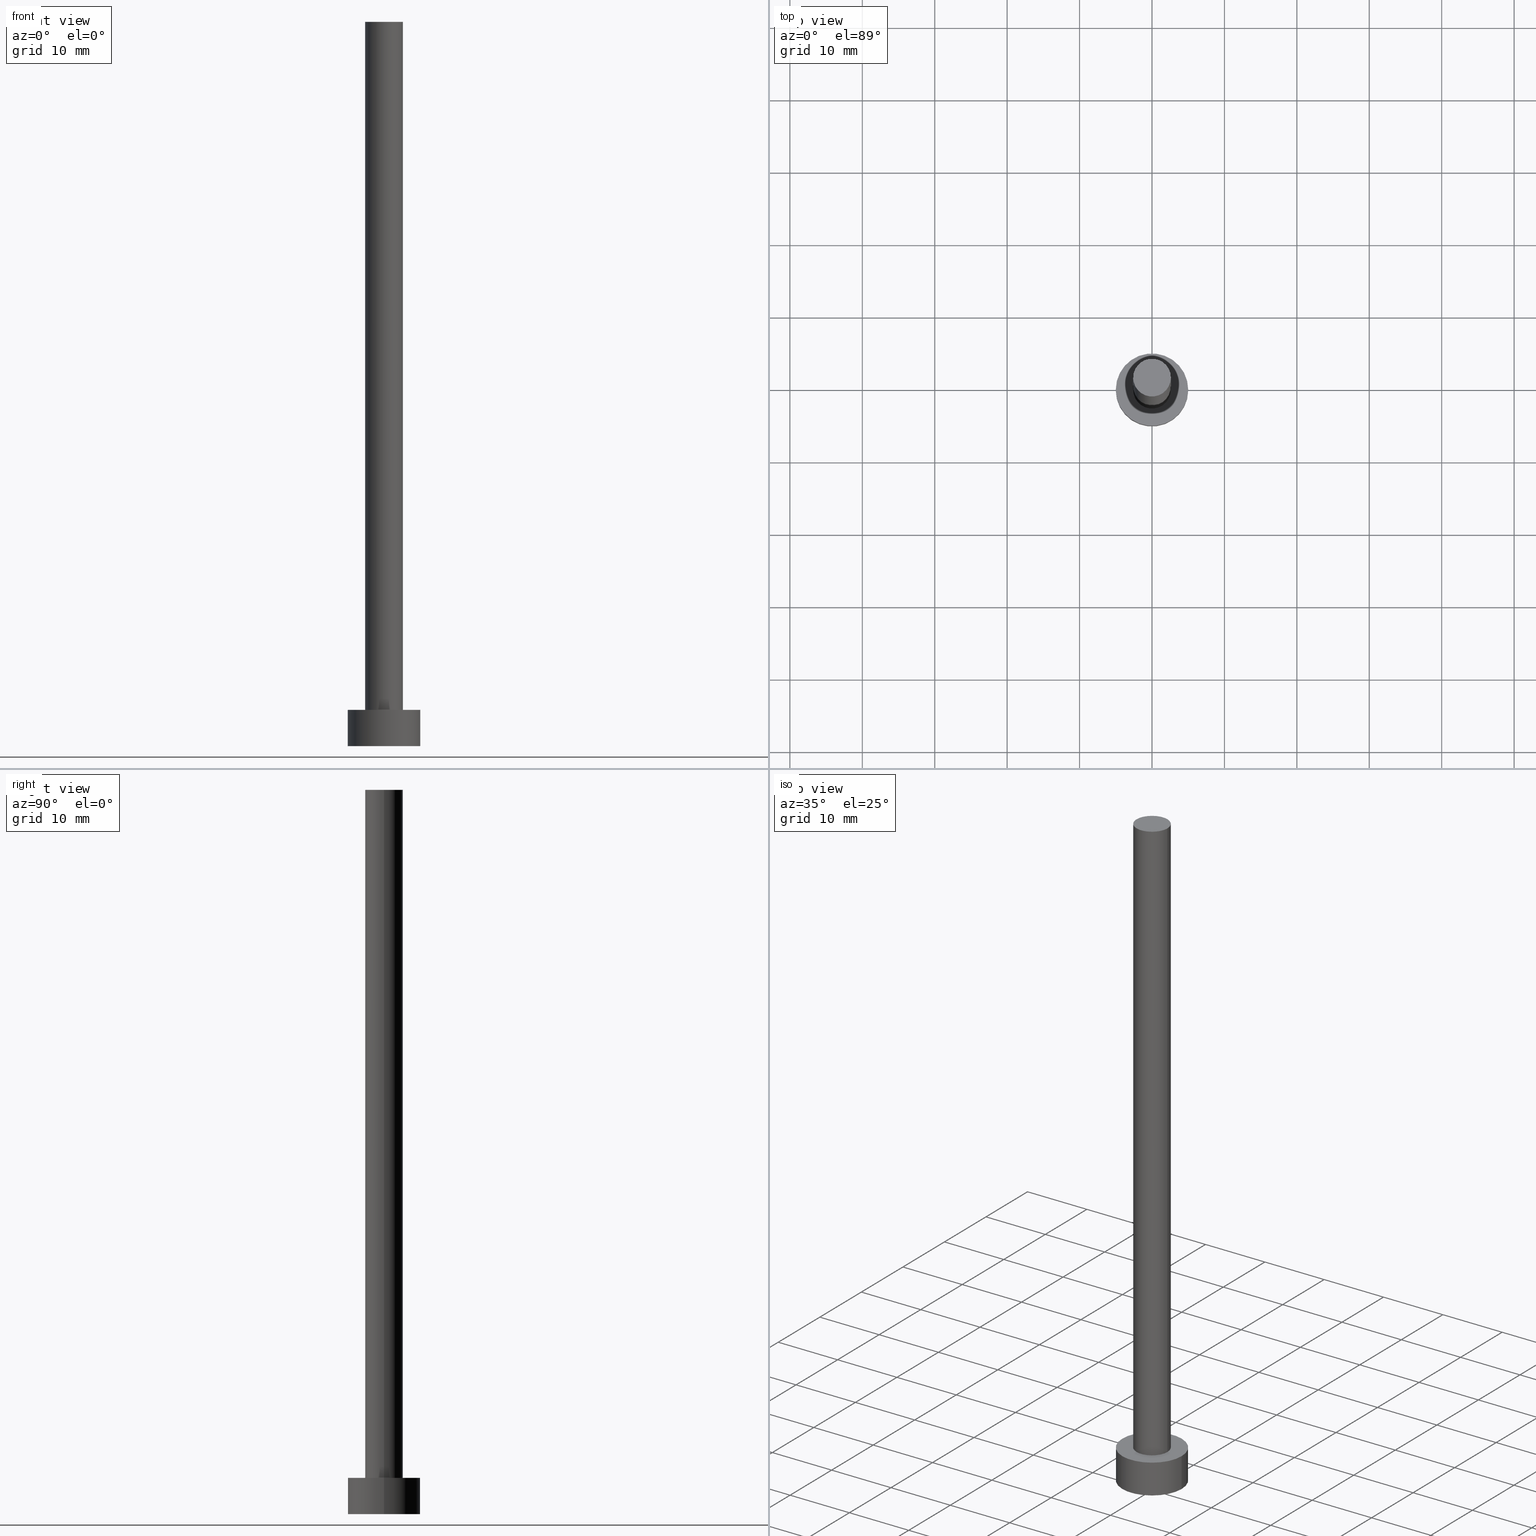
[diagram: canonical four-view strip — front | top / right | iso, engineering-drawing reading convention]
A machine part, canonical four-view strip (front | top / right | iso — engineering-drawing reading convention). The complete STEP part file that produces these views, byte-faithful:
ISO-10303-21;
HEADER;
FILE_DESCRIPTION (( 'STEP AP203' ),
    '1' );
FILE_NAME ('8d4d.STEP',
    '2023-02-13T16:04:49',
    ( '' ),
    ( '' ),
    'SwSTEP 2.0',
    'SolidWorks 2019',
    '' );
FILE_SCHEMA (( 'CONFIG_CONTROL_DESIGN' ));
ENDSEC;

DATA;
#1 = FACE_OUTER_BOUND ( 'NONE', #189, .T. ) ;
#2 = PERSON_AND_ORGANIZATION ( #164, #15 ) ;
#3 = FACE_OUTER_BOUND ( 'NONE', #206, .T. ) ;
#4 = PERSON_AND_ORGANIZATION_ROLE ( 'classification_officer' ) ;
#5 = EDGE_LOOP ( 'NONE', ( #22, #82 ) ) ;
#6 = ORIENTED_EDGE ( 'NONE', *, *, #21, .T. ) ;
#7 = AXIS2_PLACEMENT_3D ( 'NONE', #194, #87, #173 ) ;
#8 = DIRECTION ( 'NONE',  ( -0.000000000000000000, -0.000000000000000000, -1.000000000000000000 ) ) ;
#9 = FACE_OUTER_BOUND ( 'NONE', #143, .T. ) ;
#10 = APPROVAL_PERSON_ORGANIZATION ( #117, #254, #205 ) ;
#11 = CARTESIAN_POINT ( 'NONE',  ( 5.000000000000000000, 6.123233995736766282E-16, 5.000000000000000000 ) ) ;
#12 = CARTESIAN_POINT ( 'NONE',  ( -2.600000000000000089, 0.000000000000000000, 100.0000000000000000 ) ) ;
#13 = DIRECTION ( 'NONE',  ( 1.000000000000000000, 0.000000000000000000, 0.000000000000000000 ) ) ;
#14 = APPLICATION_PROTOCOL_DEFINITION ( 'international standard', 'config_control_design', 1994, #201 ) ;
#15 = ORGANIZATION ( 'NEUR�EN�', 'NEUR�EN�', '' ) ;
#16 = CALENDAR_DATE ( 2023, 13, 2 ) ;
#17 = DIRECTION ( 'NONE',  ( 0.000000000000000000, 0.000000000000000000, 1.000000000000000000 ) ) ;
#18 = APPROVAL_DATE_TIME ( #39, #254 ) ;
#19 = ORIENTED_EDGE ( 'NONE', *, *, #21, .F. ) ;
#20 = COORDINATED_UNIVERSAL_TIME_OFFSET ( 1, 0, .AHEAD. ) ;
#21 = EDGE_CURVE ( 'NONE', #191, #144, #40, .T. ) ;
#22 = ORIENTED_EDGE ( 'NONE', *, *, #48, .F. ) ;
#23 = ORIENTED_EDGE ( 'NONE', *, *, #188, .T. ) ;
#24 = ORIENTED_EDGE ( 'NONE', *, *, #236, .F. ) ;
#25 = AXIS2_PLACEMENT_3D ( 'NONE', #64, #162, #129 ) ;
#26 = AXIS2_PLACEMENT_3D ( 'NONE', #58, #135, #76 ) ;
#27 = ORIENTED_EDGE ( 'NONE', *, *, #166, .F. ) ;
#28 = CYLINDRICAL_SURFACE ( 'NONE', #218, 2.600000000000000089 ) ;
#29 = DIRECTION ( 'NONE',  ( 0.000000000000000000, 0.000000000000000000, 1.000000000000000000 ) ) ;
#30 = CYLINDRICAL_SURFACE ( 'NONE', #247, 2.600000000000000089 ) ;
#31 = ADVANCED_FACE ( 'NONE', ( #45, #1 ), #123, .T. ) ;
#32 = DIRECTION ( 'NONE',  ( 0.000000000000000000, 0.000000000000000000, 1.000000000000000000 ) ) ;
#33 = APPROVAL_STATUS ( 'not_yet_approved' ) ;
#34 = CIRCLE ( 'NONE', #147, 2.600000000000000089 ) ;
#35 = VECTOR ( 'NONE', #203, 1000.000000000000000 ) ;
#36 = CALENDAR_DATE ( 2023, 13, 2 ) ;
#37 = DATE_AND_TIME ( #16, #70 ) ;
#38 = CC_DESIGN_PERSON_AND_ORGANIZATION_ASSIGNMENT ( #183, #41, ( #75 ) ) ;
#39 = DATE_AND_TIME ( #200, #231 ) ;
#40 = LINE ( 'NONE', #225, #35 ) ;
#41 = PERSON_AND_ORGANIZATION_ROLE ( 'creator' ) ;
#42 = ORIENTED_EDGE ( 'NONE', *, *, #88, .T. ) ;
#43 = CC_DESIGN_APPROVAL ( #254, ( #169 ) ) ;
#44 = ADVANCED_FACE ( 'NONE', ( #3 ), #207, .T. ) ;
#45 = FACE_BOUND ( 'NONE', #240, .T. ) ;
#46 = VERTEX_POINT ( 'NONE', #130 ) ;
#47 = VERTEX_POINT ( 'NONE', #193 ) ;
#48 = EDGE_CURVE ( 'NONE', #46, #144, #93, .T. ) ;
#49 = LINE ( 'NONE', #12, #156 ) ;
#50 = APPLICATION_CONTEXT ( 'configuration controlled 3d designs of mechanical parts and assemblies' ) ;
#51 = DIRECTION ( 'NONE',  ( 0.000000000000000000, 0.000000000000000000, 1.000000000000000000 ) ) ;
#52 = DIRECTION ( 'NONE',  ( 1.000000000000000000, 0.000000000000000000, -0.000000000000000000 ) ) ;
#53 = CIRCLE ( 'NONE', #180, 5.000000000000000000 ) ;
#54 = CIRCLE ( 'NONE', #7, 5.000000000000000000 ) ;
#55 = CARTESIAN_POINT ( 'NONE',  ( 0.000000000000000000, 0.000000000000000000, 0.000000000000000000 ) ) ;
#56 = UNCERTAINTY_MEASURE_WITH_UNIT (LENGTH_MEASURE( 1.000000000000000082E-05 ), #251, 'distance_accuracy_value', 'NONE');
#57 = DIRECTION ( 'NONE',  ( -0.000000000000000000, -0.000000000000000000, -1.000000000000000000 ) ) ;
#58 = CARTESIAN_POINT ( 'NONE',  ( 0.000000000000000000, 0.000000000000000000, 0.000000000000000000 ) ) ;
#59 = SECURITY_CLASSIFICATION ( '', '', #238 ) ;
#60 = ORIENTED_EDGE ( 'NONE', *, *, #48, .T. ) ;
#61 = CIRCLE ( 'NONE', #239, 2.600000000000000089 ) ;
#62 = EDGE_LOOP ( 'NONE', ( #187, #83, #182, #42 ) ) ;
#63 = ORIENTED_EDGE ( 'NONE', *, *, #151, .T. ) ;
#64 = CARTESIAN_POINT ( 'NONE',  ( 0.000000000000000000, 0.000000000000000000, 100.0000000000000000 ) ) ;
#65 = CARTESIAN_POINT ( 'NONE',  ( -2.600000000000000089, 0.000000000000000000, 5.000000000000000000 ) ) ;
#66 = CARTESIAN_POINT ( 'NONE',  ( 0.000000000000000000, 0.000000000000000000, 5.000000000000000000 ) ) ;
#67 = SHAPE_DEFINITION_REPRESENTATION ( #137, #158 ) ;
#68 = DIRECTION ( 'NONE',  ( 1.000000000000000000, 0.000000000000000000, 0.000000000000000000 ) ) ;
#69 = CYLINDRICAL_SURFACE ( 'NONE', #176, 5.000000000000000000 ) ;
#70 = LOCAL_TIME ( 17, 4, 49.00000000000000000, #120 ) ;
#71 = CARTESIAN_POINT ( 'NONE',  ( 0.000000000000000000, 0.000000000000000000, 5.000000000000000000 ) ) ;
#72 = AXIS2_PLACEMENT_3D ( 'NONE', #71, #245, #248 ) ;
#73 = APPROVAL_PERSON_ORGANIZATION ( #181, #157, #159 ) ;
#74 = APPROVAL_STATUS ( 'not_yet_approved' ) ;
#75 = PRODUCT_DEFINITION ( 'NEZN�M�', '', #169, #91 ) ;
#76 = DIRECTION ( 'NONE',  ( 1.000000000000000000, 0.000000000000000000, 0.000000000000000000 ) ) ;
#77 = DIRECTION ( 'NONE',  ( 1.000000000000000000, 0.000000000000000000, -0.000000000000000000 ) ) ;
#78 = MANIFOLD_SOLID_BREP ( 'P�idat vysunut�m3', #152 ) ;
#79 = PERSON_AND_ORGANIZATION_ROLE ( 'creator' ) ;
#80 = VERTEX_POINT ( 'NONE', #65 ) ;
#81 = COORDINATED_UNIVERSAL_TIME_OFFSET ( 1, 0, .AHEAD. ) ;
#82 = ORIENTED_EDGE ( 'NONE', *, *, #233, .F. ) ;
#83 = ORIENTED_EDGE ( 'NONE', *, *, #151, .F. ) ;
#84 = DIRECTION ( 'NONE',  ( 0.000000000000000000, 0.000000000000000000, 1.000000000000000000 ) ) ;
#85 = CARTESIAN_POINT ( 'NONE',  ( 0.000000000000000000, 0.000000000000000000, 5.000000000000000000 ) ) ;
#86 = APPROVAL_DATE_TIME ( #122, #157 ) ;
#87 = DIRECTION ( 'NONE',  ( 0.000000000000000000, 0.000000000000000000, 1.000000000000000000 ) ) ;
#88 = EDGE_CURVE ( 'NONE', #80, #145, #108, .T. ) ;
#89 = DIRECTION ( 'NONE',  ( 1.000000000000000000, 0.000000000000000000, 0.000000000000000000 ) ) ;
#90 = CARTESIAN_POINT ( 'NONE',  ( 0.000000000000000000, 0.000000000000000000, 100.0000000000000000 ) ) ;
#91 = DESIGN_CONTEXT ( 'detailed design', #50, 'design' ) ;
#92 = DIRECTION ( 'NONE',  ( 0.000000000000000000, 0.000000000000000000, 1.000000000000000000 ) ) ;
#93 = CIRCLE ( 'NONE', #190, 5.000000000000000000 ) ;
#94 = ADVANCED_FACE ( 'NONE', ( #153 ), #209, .T. ) ;
#95 = DIRECTION ( 'NONE',  ( 1.000000000000000000, 0.000000000000000000, 0.000000000000000000 ) ) ;
#96 = DATE_TIME_ROLE ( 'classification_date' ) ;
#97 = CARTESIAN_POINT ( 'NONE',  ( -2.600000000000000089, 0.000000000000000000, 100.0000000000000000 ) ) ;
#98 = CALENDAR_DATE ( 2023, 13, 2 ) ;
#99 = CARTESIAN_POINT ( 'NONE',  ( 0.000000000000000000, 0.000000000000000000, 5.000000000000000000 ) ) ;
#100 = PERSON_AND_ORGANIZATION_ROLE ( 'design_supplier' ) ;
#101 = ORIENTED_EDGE ( 'NONE', *, *, #236, .T. ) ;
#102 = COORDINATED_UNIVERSAL_TIME_OFFSET ( 1, 0, .AHEAD. ) ;
#103 = ORIENTED_EDGE ( 'NONE', *, *, #160, .F. ) ;
#104 = AXIS2_PLACEMENT_3D ( 'NONE', #99, #84, #77 ) ;
#105 = ORIENTED_EDGE ( 'NONE', *, *, #233, .T. ) ;
#106 = CARTESIAN_POINT ( 'NONE',  ( 2.600000000000000089, 3.184081677783118191E-16, 100.0000000000000000 ) ) ;
#107 = DIRECTION ( 'NONE',  ( -1.000000000000000000, 0.000000000000000000, 0.000000000000000000 ) ) ;
#108 = CIRCLE ( 'NONE', #119, 2.600000000000000089 ) ;
#109 = EDGE_CURVE ( 'NONE', #47, #241, #216, .T. ) ;
#110 = DIRECTION ( 'NONE',  ( 0.000000000000000000, 0.000000000000000000, 1.000000000000000000 ) ) ;
#111 = AXIS2_PLACEMENT_3D ( 'NONE', #197, #227, #149 ) ;
#112 = CARTESIAN_POINT ( 'NONE',  ( -5.000000000000000000, 0.000000000000000000, 5.000000000000000000 ) ) ;
#113 = PLANE ( 'NONE',  #204 ) ;
#114 =( NAMED_UNIT ( * ) SI_UNIT ( $, .STERADIAN. ) SOLID_ANGLE_UNIT ( ) );
#115 = CC_DESIGN_PERSON_AND_ORGANIZATION_ASSIGNMENT ( #186, #4, ( #59 ) ) ;
#116 = DATE_AND_TIME ( #36, #196 ) ;
#117 = PERSON_AND_ORGANIZATION ( #164, #15 ) ;
#118 = DATE_TIME_ROLE ( 'creation_date' ) ;
#119 = AXIS2_PLACEMENT_3D ( 'NONE', #228, #92, #89 ) ;
#120 = COORDINATED_UNIVERSAL_TIME_OFFSET ( 1, 0, .AHEAD. ) ;
#121 = APPROVAL_PERSON_ORGANIZATION ( #234, #132, #179 ) ;
#122 = DATE_AND_TIME ( #244, #224 ) ;
#123 = PLANE ( 'NONE',  #104 ) ;
#124 = CC_DESIGN_PERSON_AND_ORGANIZATION_ASSIGNMENT ( #138, #222, ( #163 ) ) ;
#125 = ORIENTED_EDGE ( 'NONE', *, *, #192, .F. ) ;
#126 = FACE_OUTER_BOUND ( 'NONE', #62, .T. ) ;
#127 = FACE_OUTER_BOUND ( 'NONE', #5, .T. ) ;
#128 = VECTOR ( 'NONE', #8, 1000.000000000000000 ) ;
#129 = DIRECTION ( 'NONE',  ( 1.000000000000000000, 0.000000000000000000, -0.000000000000000000 ) ) ;
#130 = CARTESIAN_POINT ( 'NONE',  ( -5.000000000000000000, 0.000000000000000000, 0.000000000000000000 ) ) ;
#131 = DIRECTION ( 'NONE',  ( -1.000000000000000000, 0.000000000000000000, 0.000000000000000000 ) ) ;
#132 = APPROVAL ( #33, 'NEUR�EN�' ) ;
#133 = ADVANCED_FACE ( 'NONE', ( #214 ), #69, .T. ) ;
#134 = APPROVAL_DATE_TIME ( #255, #132 ) ;
#135 = DIRECTION ( 'NONE',  ( 0.000000000000000000, 0.000000000000000000, 1.000000000000000000 ) ) ;
#136 = ADVANCED_FACE ( 'NONE', ( #127 ), #113, .F. ) ;
#137 = PRODUCT_DEFINITION_SHAPE ( 'NONE', 'NONE',  #75 ) ;
#138 = PERSON_AND_ORGANIZATION ( #164, #15 ) ;
#139 = EDGE_LOOP ( 'NONE', ( #19, #103, #223, #60 ) ) ;
#140 =( NAMED_UNIT ( * ) PLANE_ANGLE_UNIT ( ) SI_UNIT ( $, .RADIAN. ) );
#141 = ORIENTED_EDGE ( 'NONE', *, *, #155, .T. ) ;
#142 = CC_DESIGN_APPROVAL ( #132, ( #75 ) ) ;
#143 = EDGE_LOOP ( 'NONE', ( #167, #141, #101, #125 ) ) ;
#144 = VERTEX_POINT ( 'NONE', #229 ) ;
#145 = VERTEX_POINT ( 'NONE', #150 ) ;
#146 = CARTESIAN_POINT ( 'NONE',  ( -5.000000000000000000, 0.000000000000000000, 5.000000000000000000 ) ) ;
#147 = AXIS2_PLACEMENT_3D ( 'NONE', #66, #17, #95 ) ;
#148 = ADVANCED_FACE ( 'NONE', ( #9 ), #30, .T. ) ;
#149 = DIRECTION ( 'NONE',  ( 1.000000000000000000, 0.000000000000000000, 0.000000000000000000 ) ) ;
#150 = CARTESIAN_POINT ( 'NONE',  ( 2.600000000000000089, 3.184081677783118191E-16, 5.000000000000000000 ) ) ;
#151 = EDGE_CURVE ( 'NONE', #241, #47, #61, .T. ) ;
#152 = CLOSED_SHELL ( 'NONE', ( #148, #94, #133, #31, #136, #210, #44 ) ) ;
#153 = FACE_OUTER_BOUND ( 'NONE', #221, .T. ) ;
#154 = DIRECTION ( 'NONE',  ( -1.000000000000000000, 0.000000000000000000, 0.000000000000000000 ) ) ;
#155 = EDGE_CURVE ( 'NONE', #47, #145, #215, .T. ) ;
#156 = VECTOR ( 'NONE', #175, 1000.000000000000000 ) ;
#157 = APPROVAL ( #74, 'NEUR�EN�' ) ;
#158 = ADVANCED_BREP_SHAPE_REPRESENTATION ( '8d4d', ( #78, #26 ), #235 ) ;
#159 = APPROVAL_ROLE ( '' ) ;
#160 = EDGE_CURVE ( 'NONE', #170, #191, #53, .T. ) ;
#161 = VECTOR ( 'NONE', #242, 1000.000000000000000 ) ;
#162 = DIRECTION ( 'NONE',  ( 0.000000000000000000, 0.000000000000000000, 1.000000000000000000 ) ) ;
#163 = PRODUCT ( '8d4d', '8d4d', '', ( #199 ) ) ;
#164 = PERSON ( 'NEUR�EN�', 'NEUR�EN�', 'NEUR�EN�', ('NEUR�EN�'), ('NEUR�EN�'), ('NEUR�EN�') ) ;
#165 = PERSON_AND_ORGANIZATION ( #164, #15 ) ;
#166 = EDGE_CURVE ( 'NONE', #170, #46, #195, .T. ) ;
#167 = ORIENTED_EDGE ( 'NONE', *, *, #109, .F. ) ;
#168 = CC_DESIGN_DATE_AND_TIME_ASSIGNMENT ( #116, #96, ( #59 ) ) ;
#169 = PRODUCT_DEFINITION_FORMATION_WITH_SPECIFIED_SOURCE ( 'LIBOVOLN�', '', #163, .NOT_KNOWN. ) ;
#170 = VERTEX_POINT ( 'NONE', #146 ) ;
#171 = ORIENTED_EDGE ( 'NONE', *, *, #88, .F. ) ;
#172 = DIRECTION ( 'NONE',  ( 1.000000000000000000, 0.000000000000000000, 0.000000000000000000 ) ) ;
#173 = DIRECTION ( 'NONE',  ( 1.000000000000000000, 0.000000000000000000, 0.000000000000000000 ) ) ;
#174 = DIRECTION ( 'NONE',  ( 1.000000000000000000, 0.000000000000000000, 0.000000000000000000 ) ) ;
#175 = DIRECTION ( 'NONE',  ( -0.000000000000000000, -0.000000000000000000, -1.000000000000000000 ) ) ;
#176 = AXIS2_PLACEMENT_3D ( 'NONE', #85, #177, #154 ) ;
#177 = DIRECTION ( 'NONE',  ( -0.000000000000000000, -0.000000000000000000, -1.000000000000000000 ) ) ;
#178 = CC_DESIGN_SECURITY_CLASSIFICATION ( #59, ( #169 ) ) ;
#179 = APPROVAL_ROLE ( '' ) ;
#180 = AXIS2_PLACEMENT_3D ( 'NONE', #243, #110, #172 ) ;
#181 = PERSON_AND_ORGANIZATION ( #164, #15 ) ;
#182 = ORIENTED_EDGE ( 'NONE', *, *, #192, .T. ) ;
#183 = PERSON_AND_ORGANIZATION ( #164, #15 ) ;
#184 = CC_DESIGN_APPROVAL ( #157, ( #59 ) ) ;
#185 = ORIENTED_EDGE ( 'NONE', *, *, #188, .F. ) ;
#186 = PERSON_AND_ORGANIZATION ( #164, #15 ) ;
#187 = ORIENTED_EDGE ( 'NONE', *, *, #155, .F. ) ;
#188 = EDGE_CURVE ( 'NONE', #191, #170, #249, .T. ) ;
#189 = EDGE_LOOP ( 'NONE', ( #226, #23 ) ) ;
#190 = AXIS2_PLACEMENT_3D ( 'NONE', #55, #32, #13 ) ;
#191 = VERTEX_POINT ( 'NONE', #11 ) ;
#192 = EDGE_CURVE ( 'NONE', #241, #80, #49, .T. ) ;
#193 = CARTESIAN_POINT ( 'NONE',  ( 2.600000000000000089, 3.184081677783118191E-16, 100.0000000000000000 ) ) ;
#194 = CARTESIAN_POINT ( 'NONE',  ( 0.000000000000000000, 0.000000000000000000, 0.000000000000000000 ) ) ;
#195 = LINE ( 'NONE', #112, #161 ) ;
#196 = LOCAL_TIME ( 17, 4, 49.00000000000000000, #81 ) ;
#197 = CARTESIAN_POINT ( 'NONE',  ( 0.000000000000000000, 0.000000000000000000, 5.000000000000000000 ) ) ;
#198 = CARTESIAN_POINT ( 'NONE',  ( 0.000000000000000000, 0.000000000000000000, 0.000000000000000000 ) ) ;
#199 = MECHANICAL_CONTEXT ( 'NONE', #201, 'mechanical' ) ;
#200 = CALENDAR_DATE ( 2023, 13, 2 ) ;
#201 = APPLICATION_CONTEXT ( 'configuration controlled 3d designs of mechanical parts and assemblies' ) ;
#202 = PRODUCT_RELATED_PRODUCT_CATEGORY ( 'detail', '', ( #163 ) ) ;
#203 = DIRECTION ( 'NONE',  ( -0.000000000000000000, -0.000000000000000000, -1.000000000000000000 ) ) ;
#204 = AXIS2_PLACEMENT_3D ( 'NONE', #198, #51, #52 ) ;
#205 = APPROVAL_ROLE ( '' ) ;
#206 = EDGE_LOOP ( 'NONE', ( #63, #237 ) ) ;
#207 = PLANE ( 'NONE',  #25 ) ;
#208 = LOCAL_TIME ( 17, 4, 49.00000000000000000, #220 ) ;
#209 = CYLINDRICAL_SURFACE ( 'NONE', #72, 5.000000000000000000 ) ;
#210 = ADVANCED_FACE ( 'NONE', ( #126 ), #28, .T. ) ;
#211 = CARTESIAN_POINT ( 'NONE',  ( 0.000000000000000000, 0.000000000000000000, 100.0000000000000000 ) ) ;
#212 = CC_DESIGN_PERSON_AND_ORGANIZATION_ASSIGNMENT ( #2, #79, ( #169 ) ) ;
#213 = CARTESIAN_POINT ( 'NONE',  ( 0.000000000000000000, 0.000000000000000000, 100.0000000000000000 ) ) ;
#214 = FACE_OUTER_BOUND ( 'NONE', #139, .T. ) ;
#215 = LINE ( 'NONE', #106, #128 ) ;
#216 = CIRCLE ( 'NONE', #253, 2.600000000000000089 ) ;
#217 = APPROVAL_STATUS ( 'not_yet_approved' ) ;
#218 = AXIS2_PLACEMENT_3D ( 'NONE', #90, #246, #107 ) ;
#219 = APPLICATION_PROTOCOL_DEFINITION ( 'international standard', 'config_control_design', 1994, #50 ) ;
#220 = COORDINATED_UNIVERSAL_TIME_OFFSET ( 1, 0, .AHEAD. ) ;
#221 = EDGE_LOOP ( 'NONE', ( #185, #6, #105, #27 ) ) ;
#222 = PERSON_AND_ORGANIZATION_ROLE ( 'design_owner' ) ;
#223 = ORIENTED_EDGE ( 'NONE', *, *, #166, .T. ) ;
#224 = LOCAL_TIME ( 17, 4, 49.00000000000000000, #102 ) ;
#225 = CARTESIAN_POINT ( 'NONE',  ( 5.000000000000000000, 6.123233995736766282E-16, 5.000000000000000000 ) ) ;
#226 = ORIENTED_EDGE ( 'NONE', *, *, #160, .T. ) ;
#227 = DIRECTION ( 'NONE',  ( 0.000000000000000000, 0.000000000000000000, 1.000000000000000000 ) ) ;
#228 = CARTESIAN_POINT ( 'NONE',  ( 0.000000000000000000, 0.000000000000000000, 5.000000000000000000 ) ) ;
#229 = CARTESIAN_POINT ( 'NONE',  ( 5.000000000000000000, 6.123233995736766282E-16, 0.000000000000000000 ) ) ;
#230 = DIRECTION ( 'NONE',  ( 0.000000000000000000, 0.000000000000000000, 1.000000000000000000 ) ) ;
#231 = LOCAL_TIME ( 17, 4, 49.00000000000000000, #20 ) ;
#232 = CARTESIAN_POINT ( 'NONE',  ( 0.000000000000000000, 0.000000000000000000, 100.0000000000000000 ) ) ;
#233 = EDGE_CURVE ( 'NONE', #144, #46, #54, .T. ) ;
#234 = PERSON_AND_ORGANIZATION ( #164, #15 ) ;
#235 =( GEOMETRIC_REPRESENTATION_CONTEXT ( 3 ) GLOBAL_UNCERTAINTY_ASSIGNED_CONTEXT ( ( #56 ) ) GLOBAL_UNIT_ASSIGNED_CONTEXT ( ( #251, #140, #114 ) ) REPRESENTATION_CONTEXT ( 'NONE', 'WORKASPACE' ) );
#236 = EDGE_CURVE ( 'NONE', #145, #80, #34, .T. ) ;
#237 = ORIENTED_EDGE ( 'NONE', *, *, #109, .T. ) ;
#238 = SECURITY_CLASSIFICATION_LEVEL ( 'unclassified' ) ;
#239 = AXIS2_PLACEMENT_3D ( 'NONE', #211, #29, #68 ) ;
#240 = EDGE_LOOP ( 'NONE', ( #171, #24 ) ) ;
#241 = VERTEX_POINT ( 'NONE', #97 ) ;
#242 = DIRECTION ( 'NONE',  ( -0.000000000000000000, -0.000000000000000000, -1.000000000000000000 ) ) ;
#243 = CARTESIAN_POINT ( 'NONE',  ( 0.000000000000000000, 0.000000000000000000, 5.000000000000000000 ) ) ;
#244 = CALENDAR_DATE ( 2023, 13, 2 ) ;
#245 = DIRECTION ( 'NONE',  ( -0.000000000000000000, -0.000000000000000000, -1.000000000000000000 ) ) ;
#246 = DIRECTION ( 'NONE',  ( -0.000000000000000000, -0.000000000000000000, -1.000000000000000000 ) ) ;
#247 = AXIS2_PLACEMENT_3D ( 'NONE', #232, #57, #131 ) ;
#248 = DIRECTION ( 'NONE',  ( -1.000000000000000000, 0.000000000000000000, 0.000000000000000000 ) ) ;
#249 = CIRCLE ( 'NONE', #111, 5.000000000000000000 ) ;
#250 = CC_DESIGN_PERSON_AND_ORGANIZATION_ASSIGNMENT ( #165, #100, ( #169 ) ) ;
#251 =( LENGTH_UNIT ( ) NAMED_UNIT ( * ) SI_UNIT ( .MILLI., .METRE. ) );
#252 = CC_DESIGN_DATE_AND_TIME_ASSIGNMENT ( #37, #118, ( #75 ) ) ;
#253 = AXIS2_PLACEMENT_3D ( 'NONE', #213, #230, #174 ) ;
#254 = APPROVAL ( #217, 'NEUR�EN�' ) ;
#255 = DATE_AND_TIME ( #98, #208 ) ;
ENDSEC;
END-ISO-10303-21;
